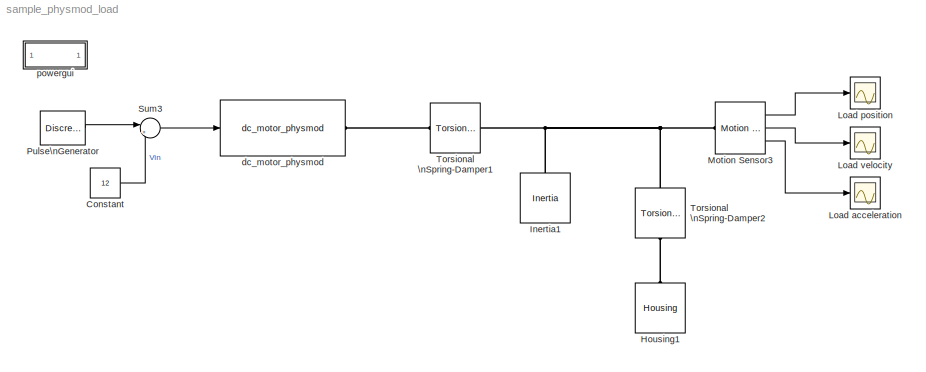
MODEL sample_physmod_load
KIND model
BLOCK [Constant] Constant
  ConRadixGroup = Use specified scaling
  FramePeriod = inf
  OutDataType = sfix(16)
  OutDataTypeMode = Inherit from 'Constant value'
  OutScaling = 2^0
  SampleTime = inf
  SamplingMode = Sample based
  Value = 12
  VectorParams1D = on
BLOCK [Reference] Housing1  REF=driveline/Solver &\nInertias/Housing  (lib defined in slx_0115b7ecc7e4, slx_0630d05a24ab, +7 more)
  FunctionWithSeparateData = off
  Ports = [0, 0, 0, 0, 0, 0, 1]
  RTWMemSecDataConstants = Inherit from model
  RTWMemSecDataInternal = Inherit from model
  RTWMemSecDataParameters = Inherit from model
  RTWMemSecFuncExecute = Inherit from model
  RTWMemSecFuncInitTerm = Inherit from model
  ShowPortLabels = on
  SourceBlock = driveline/Solver &\nInertias/Housing
  SourceType = Housing
  SystemSampleTime = -1
BLOCK [Reference] Inertia1  REF=driveline/Solver &\nInertias/Inertia  (lib defined in slx_0115b7ecc7e4, slx_0630d05a24ab, +7 more)
  BlockClass = Inertia
  FunctionWithSeparateData = off
  I = 10.07e-6
  Ip = []
  Iv = []
  PhysicalDomain = driveline_domain
  PortType = p1
  Ports = [0, 0, 0, 0, 0, 0, 1]
  RTWMemSecDataConstants = Inherit from model
  RTWMemSecDataInternal = Inherit from model
  RTWMemSecDataParameters = Inherit from model
  RTWMemSecFuncExecute = Inherit from model
  RTWMemSecFuncInitTerm = Inherit from model
  ShowLeft = off
  ShowPortLabels = on
  ShowRight = on
  SourceBlock = driveline/Solver &\nInertias/Inertia
  SourceType = Inertia
  SystemSampleTime = -1
BLOCK [Scope] Load acceleration
  DataFormat = StructureWithTime
  Floating = off
  LimitDataPoints = off
  NumInputPorts = 1
  Ports = [1]
  SampleTime = 0
  SaveName = ScopeData1
BLOCK [Scope] Load position
  DataFormat = StructureWithTime
  Floating = off
  LimitDataPoints = off
  NumInputPorts = 1
  Ports = [1]
  SampleTime = 0
  SaveName = ScopeData3
BLOCK [Scope] Load velocity
  DataFormat = StructureWithTime
  Floating = off
  LimitDataPoints = off
  NumInputPorts = 1
  Ports = [1]
  SampleTime = 0
BLOCK [Reference] Motion Sensor3  REF=driveline/Sensors &\nActuators/Motion Sensor  (lib defined in slx_0115b7ecc7e4, slx_0630d05a24ab, +7 more)
  Acceleration = on
  Angle = on
  FunctionWithSeparateData = off
  Ports = [0, 3, 0, 0, 0, 1]
  RTWMemSecDataConstants = Inherit from model
  RTWMemSecDataInternal = Inherit from model
  RTWMemSecDataParameters = Inherit from model
  RTWMemSecFuncExecute = Inherit from model
  RTWMemSecFuncInitTerm = Inherit from model
  ShowPortLabels = on
  SourceBlock = driveline/Sensors &\nActuators/Motion Sensor
  SourceType = Motion Sensor
  SystemSampleTime = -1
  Velocity = on
  x0 = 0
BLOCK [DiscretePulseGenerator] Pulse\nGenerator
  Amplitude = 24
  Period = 10
  Ports = [0, 1]
  PulseType = Time based
  PulseWidth = 50
BLOCK [Sum] Sum3
  IconShape = round
  InputSameDT = off
  Inputs = |+-
  OutDataTypeMode = Inherit via internal rule
  Ports = [2, 1]
  SaturateOnIntegerOverflow = off
BLOCK [Reference] Torsional \nSpring-Damper1  REF=driveline/Dynamic\nElements/Torsional \nSpring-Damper  (lib defined in slx_0115b7ecc7e4, slx_0630d05a24ab, +7 more)
  Backlash = 0
  FunctionWithSeparateData = off
  Ports = [0, 0, 0, 0, 0, 1, 1]
  RTWMemSecDataConstants = Inherit from model
  RTWMemSecDataInternal = Inherit from model
  RTWMemSecDataParameters = Inherit from model
  RTWMemSecFuncExecute = Inherit from model
  RTWMemSecFuncInitTerm = Inherit from model
  ShowPortLabels = on
  SourceBlock = driveline/Dynamic\nElements/Torsional \nSpring-Damper
  SourceType = Torsional Spring-Damper
  SystemSampleTime = -1
  c = 0.0001
  k = 100
  x0 = 0
BLOCK [Reference] Torsional \nSpring-Damper2  REF=driveline/Dynamic\nElements/Torsional \nSpring-Damper  (lib defined in slx_0115b7ecc7e4, slx_0630d05a24ab, +7 more)
  Backlash = 0
  FunctionWithSeparateData = off
  Ports = [0, 0, 0, 0, 0, 1, 1]
  RTWMemSecDataConstants = Inherit from model
  RTWMemSecDataInternal = Inherit from model
  RTWMemSecDataParameters = Inherit from model
  RTWMemSecFuncExecute = Inherit from model
  RTWMemSecFuncInitTerm = Inherit from model
  ShowPortLabels = on
  SourceBlock = driveline/Dynamic\nElements/Torsional \nSpring-Damper
  SourceType = Torsional Spring-Damper
  SystemSampleTime = -1
  c = 12e-6
  k = 0
  x0 = 0
BLOCK [Reference] dc_motor_physmod  REF=dc_motor_lib/dc_motor_physmod  (lib defined in mdl_47a98f9b099e)
  FunctionWithSeparateData = off
  Jm = 1.07e-6
  Kb = 1/((406*2*pi)/60)
  Kt = 0.0235
  Lm = 0.000238
  Ports = [1, 0, 0, 0, 0, 0, 1]
  RTWMemSecDataConstants = Inherit from model
  RTWMemSecDataInternal = Inherit from model
  RTWMemSecDataParameters = Inherit from model
  RTWMemSecFuncExecute = Inherit from model
  RTWMemSecFuncInitTerm = Inherit from model
  Rm = 2.06
  ShowPortLabels = on
  SourceBlock = dc_motor_lib/dc_motor_physmod
  SystemSampleTime = -1
  bm = 12e-7
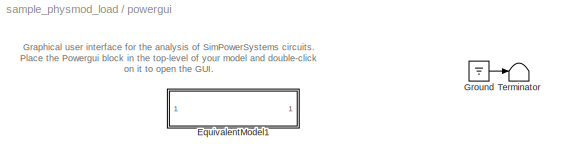
BLOCK [SubSystem] powergui
  AncestorBlock = powerlib/powergui
  CopyFcn = powergui('Copy_Callback',gcb,0,[]);
  DeleteFcn = powergui('Copy_Callback',gcb,1,[]);powergui('Close_Callback',gcb,[],[]);\n
  FunctionWithSeparateData = off
  InitFcn = powerguiblock = gcb;                                        \nblk = get_param(powerguiblock,'blocks');                    \nNbBlocks = length(blk);                                     \nif NbBlocks>2                                               \n% clean-up:                                                 \nfor m=1:NbBlocks-2                                          \ndelete_block([powerguiblock,...<+99ch>
  MaskCallbackString = ||||||||||||||||||||||||
  MaskDisplay = disp(message)
  MaskEnableString = on,on,on,on,on,on,on,on,on,on,on,on,on,on,on,on,on,on,on,on,on,on,on,on,on
  MaskHelp = web(psbhelp)
  MaskHideContents = off
  MaskIconFrame = on
  MaskIconOpaque = on
  MaskIconRotate = none
  MaskIconUnits = autoscale
  MaskInitialization = powerlibroot = which('powersysdomain');\nPSBroot = powerlibroot(1:end-16);\n%\nswitch SimulationMode\n	case 1\n		message=sprintf('Continuous');\n	case 2\n        message=sprintf('Discrete,\\nTs = %.4g s.',SampleTime);\n	case 3\n		message=sprintf('Phasors');\nend\nif strcmp(bdroot,'powerlib')\n  message='powergui';\nend\npower_initmask();
  MaskPromptString = General parameter: Simulation Mode |General parameter: Sample Time|General parameter: Echo  Messages|Initial electrical states status|Impedance tool: Frequency Range|Impedance tool: Log impedance|Impedance tool: log Frequency|Impedance tool: grid|Impedance tool: Save Data To Workspace|Impedance tool: Variable Name|Structure Name (PSBFFTSCOPE)|ZoomFFT (PSBFFTSCOPE)|Start Time (PSBFFTSCOPE)|Cycles (...<+301ch>
  MaskSelfModifiable = on
  MaskStyleString = popup(Continuous|Discrete|Phasor),edit,checkbox,popup(blocks|steady|zero),edit,checkbox,checkbox,checkbox,checkbox,edit,edit,checkbox,edit,edit,edit,edit,checkbox,edit,edit,edit,edit,checkbox,edit,edit,checkbox
  MaskTabNameString = ,,,,,,,,,,,,,,,,,,,,,,,,
  MaskToolTipString = on,on,on,on,on,on,on,on,on,on,on,on,on,on,on,on,on,on,on,on,on,on,on,on,on
  MaskTunableValueString = on,on,on,on,on,on,on,on,on,on,on,on,on,on,on,on,on,on,on,on,on,on,on,on,on
  MaskType = PSB option menu block
  MaskValueString = Continuous|0|off|blocks|[0:2:500]|off|on|off|off|ZData||on|0.0|1|1|60|off|1000|1|1|1|off|0|60|off
  MaskVarAliasString = ,,,,,,,,,,,,,,,,,,,,,,,,
  MaskVariables = SimulationMode=@1;SampleTime=@2;echomessages=@3;x0status=@4;Frange=@5;Ylog=@6;Xlog=@7;ShowGrid=@8;save=@9;variable=&10;structure=&11;ZoomFFT=@12;StartTime=@13;cycles=@14;DisplayStyle=&15;fundamental=@16;FreqAxis=@17;MaxFrequency=@18;frequencyindice=@19;frequencyindicesteady=@20;RmsSteady=@21;display=@22;Ts=@23;frequency=@24;methode=@25;
  MaskVisibilityString = on,on,on,on,off,off,off,off,off,off,off,off,off,off,off,off,off,off,off,off,off,on,on,on,on
  MinAlgLoopOccurrences = off
  ModelCloseFcn = powergui('Close_Callback',gcb,[],[]);
  NameChangeFcn = handles = get_param(gcb,'UserData');if ~isempty(handles);delete(handles.powergui);end
  OpenFcn = if (power_openblockproxy ('secondary'))\npowergui(gcb,'PM')\nend;
  Ports = []
  PreSaveFcn = %try                                 \n%close(get_param(gcbh,'userdata'))   \n%end                                 \n                                     \npowergui('Close_Callback',gcb,[],[]);
  RTWSystemCode = Auto
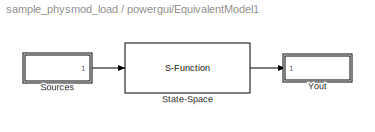
BLOCK [SubSystem] powergui/EquivalentModel1
  FunctionWithSeparateData = off
  MaskDisplay = color('green')\ndisp('EQUIVALENT CIRCUIT')
  MaskHideContents = off
  MaskIconFrame = on
  MaskIconOpaque = on
  MaskIconRotate = none
  MaskIconUnits = autoscale
  MaskInitialization = SPS = get_param(gcbh,'UserData');\nif isempty(SPS)\n    A=0;\n    B=0;\n    C=0;\n    D=0;\n    x0=0;\nelse\n	A=SPS.A;\n    B=SPS.B;\n    C=SPS.C;\n    D=SPS.D;\n    x0=SPS.x0;\nend
  MinAlgLoopOccurrences = off
  Ports = []
  RTWSystemCode = Auto
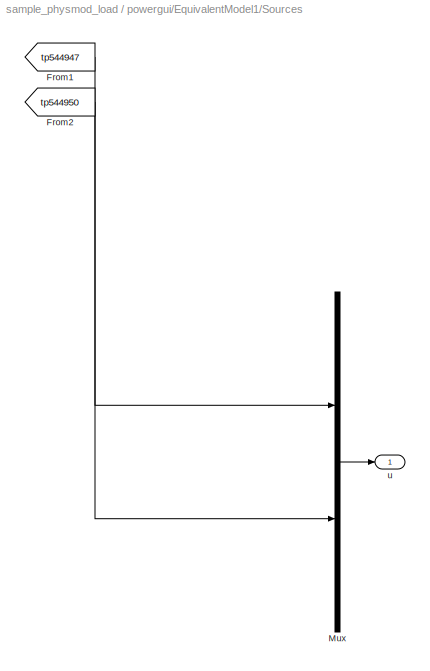
BLOCK [SubSystem] powergui/EquivalentModel1/Sources
  FunctionWithSeparateData = off
  MaskHideContents = off
  MinAlgLoopOccurrences = off
  Ports = [0, 1]
  RTWSystemCode = Auto
BLOCK [From] powergui/EquivalentModel1/Sources/From1
  GotoTag = tp544947
BLOCK [From] powergui/EquivalentModel1/Sources/From2
  GotoTag = tp544950
BLOCK [Mux] powergui/EquivalentModel1/Sources/Mux
  DisplayOption = bar
  Inputs = [1 1]
  Ports = [2, 1]
BLOCK [Outport] powergui/EquivalentModel1/Sources/u
  BusOutputAsStruct = off
  IconDisplay = Port number
BLOCK [S-Function] powergui/EquivalentModel1/State-Space
  FunctionName = sfun_spssw_contc
  MaskIconFrame = on
  MaskIconOpaque = on
  MaskIconRotate = none
  MaskIconUnits = autoscale
  Parameters = A, B, C, D, x0
  Ports = [1, 1]
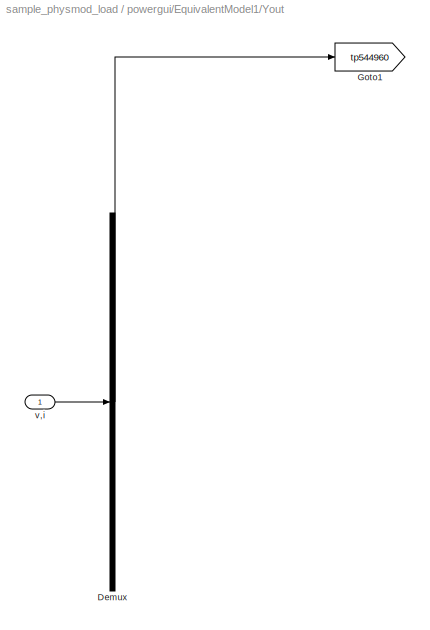
BLOCK [SubSystem] powergui/EquivalentModel1/Yout
  FunctionWithSeparateData = off
  MaskHideContents = off
  MinAlgLoopOccurrences = off
  Ports = [1]
  RTWSystemCode = Auto
BLOCK [Demux] powergui/EquivalentModel1/Yout/Demux
  DisplayOption = bar
  Outputs = 1
  Ports = [1, 1]
BLOCK [Goto] powergui/EquivalentModel1/Yout/Goto1
  GotoTag = tp544960
  TagVisibility = global
BLOCK [Inport] powergui/EquivalentModel1/Yout/v,i
  IconDisplay = Port number
BLOCK [Ground] powergui/Ground
BLOCK [Terminator] powergui/Terminator
ANNOTATION powergui: Graphical user interface for the analysis of SimPowerSystems circuits. \nPlace the Powergui block in the top-level of your model and double-click\non it to open the GUI.
LINE Constant:1 -> Sum3:2
LINE Motion Sensor3:1 -> Load position:1
LINE Motion Sensor3:2 -> Load velocity:1
LINE Motion Sensor3:3 -> Load acceleration:1
LINE Pulse\nGenerator:1 -> Sum3:1
LINE Sum3:1 -> dc_motor_physmod:1
LINE powergui/EquivalentModel1/Sources/From1:1 -> powergui/EquivalentModel1/Sources/Mux:1
LINE powergui/EquivalentModel1/Sources/From2:1 -> powergui/EquivalentModel1/Sources/Mux:2
LINE powergui/EquivalentModel1/Sources/Mux:1 -> powergui/EquivalentModel1/Sources/u:1
LINE powergui/EquivalentModel1/Sources:1 -> powergui/EquivalentModel1/State-Space:1
LINE powergui/EquivalentModel1/State-Space:1 -> powergui/EquivalentModel1/Yout:1
LINE powergui/EquivalentModel1/Yout/Demux:1 -> powergui/EquivalentModel1/Yout/Goto1:1
LINE powergui/EquivalentModel1/Yout/v,i:1 -> powergui/EquivalentModel1/Yout/Demux:1
LINE powergui/Ground:1 -> powergui/Terminator:1
PLINE Housing1:RConn1 -- Torsional \nSpring-Damper2:LConn1
PNET net1: Inertia1:RConn1 -- Motion Sensor3:LConn1 -- Torsional \nSpring-Damper1:RConn1 -- Torsional \nSpring-Damper2:RConn1
PLINE Torsional \nSpring-Damper1:LConn1 -- dc_motor_physmod:RConn1
note: PNET lines group multi-terminal physical nets as a canonical sorted terminal list (undirected conserving connections); 2-terminal nets keep the pairwise PLINE form
